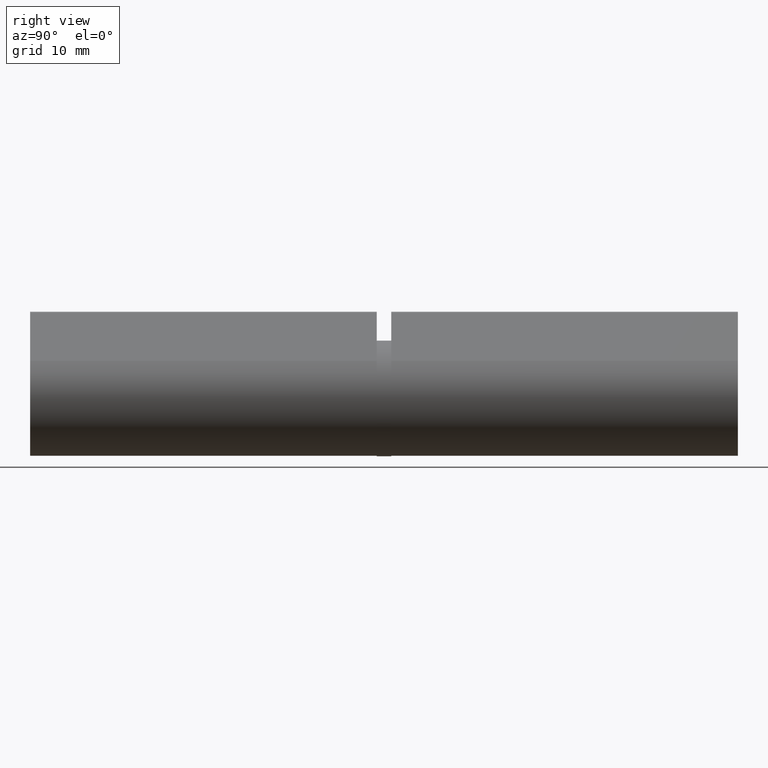
[diagram: clean part render]
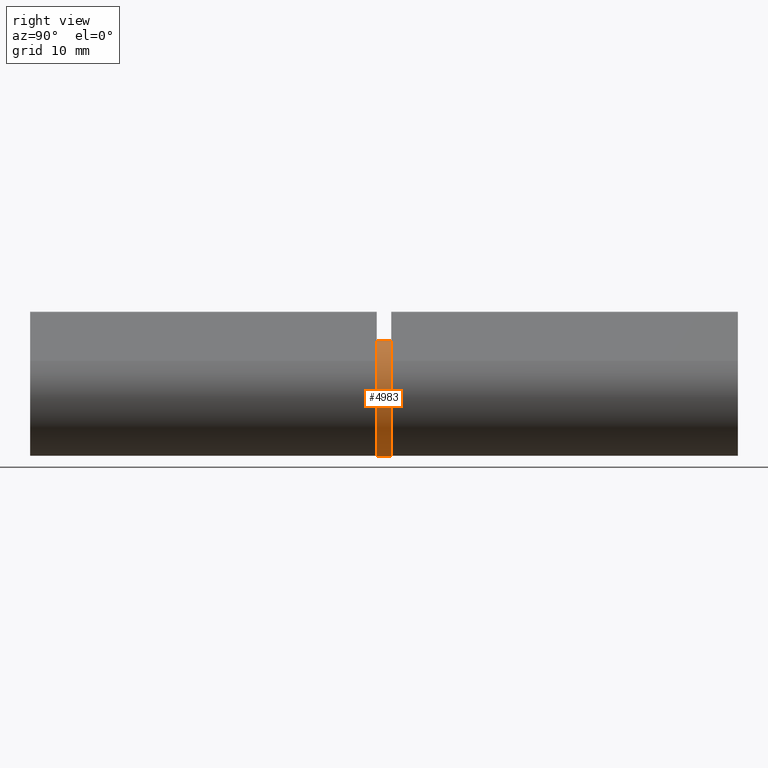
[diagram: same view with one face highlighted and labeled with its STEP entity id]
A machine part, right view. The second image highlights one B-rep face of the part: STEP entity #4983.
In plain terms, the highlighted cylindrical surface (bore or boss wall) has radius 8 mm, axis along (-0, -1, -0).
Its self-contained STEP definition (entity closure, byte-faithful):
#813 = DIRECTION ( 'NONE',  ( 0.000000000000000000, 0.000000000000000000, 1.000000000000000000 ) ) ;
#1459 = EDGE_CURVE ( 'NONE', #3259, #3259, #8055, .T. ) ;
#1533 = EDGE_LOOP ( 'NONE', ( #11756 ) ) ;
#1813 = CIRCLE ( 'NONE', #10343, 8.000000000000000000 ) ;
#2433 = FACE_OUTER_BOUND ( 'NONE', #1533, .T. ) ;
#3142 = DIRECTION ( 'NONE',  ( 0.000000000000000000, 1.000000000000000000, 0.000000000000000000 ) ) ;
#3228 = DIRECTION ( 'NONE',  ( 0.000000000000000000, 0.000000000000000000, 1.000000000000000000 ) ) ;
#3259 = VERTEX_POINT ( 'NONE', #10859 ) ;
#3508 = EDGE_CURVE ( 'NONE', #5165, #5165, #1813, .T. ) ;
#4983 = ADVANCED_FACE ( 'NONE', ( #6897, #2433 ), #5779, .T. ) ;
#4998 = DIRECTION ( 'NONE',  ( 0.000000000000000000, 0.000000000000000000, -1.000000000000000000 ) ) ;
#5165 = VERTEX_POINT ( 'NONE', #11897 ) ;
#5779 = CYLINDRICAL_SURFACE ( 'NONE', #6382, 8.000000000000000000 ) ;
#5967 = CARTESIAN_POINT ( 'NONE',  ( 0.000000000000000000, 1.000000000000000000, 0.000000000000000000 ) ) ;
#6382 = AXIS2_PLACEMENT_3D ( 'NONE', #5967, #9069, #4998 ) ;
#6387 = EDGE_LOOP ( 'NONE', ( #9256 ) ) ;
#6897 = FACE_OUTER_BOUND ( 'NONE', #6387, .T. ) ;
#7124 = CARTESIAN_POINT ( 'NONE',  ( 0.000000000000000000, -1.000000000000000000, 0.000000000000000000 ) ) ;
#8055 = CIRCLE ( 'NONE', #12846, 8.000000000000000000 ) ;
#8229 = CARTESIAN_POINT ( 'NONE',  ( 0.000000000000000000, 1.000000000000000000, 0.000000000000000000 ) ) ;
#9069 = DIRECTION ( 'NONE',  ( -0.000000000000000000, -1.000000000000000000, -0.000000000000000000 ) ) ;
#9143 = DIRECTION ( 'NONE',  ( 0.000000000000000000, 1.000000000000000000, 0.000000000000000000 ) ) ;
#9256 = ORIENTED_EDGE ( 'NONE', *, *, #3508, .F. ) ;
#10343 = AXIS2_PLACEMENT_3D ( 'NONE', #8229, #3142, #3228 ) ;
#10859 = CARTESIAN_POINT ( 'NONE',  ( 0.000000000000000000, -1.000000000000000000, 8.000000000000000000 ) ) ;
#11756 = ORIENTED_EDGE ( 'NONE', *, *, #1459, .T. ) ;
#11897 = CARTESIAN_POINT ( 'NONE',  ( 0.000000000000000000, 1.000000000000000000, 8.000000000000000000 ) ) ;
#12846 = AXIS2_PLACEMENT_3D ( 'NONE', #7124, #9143, #813 ) ;